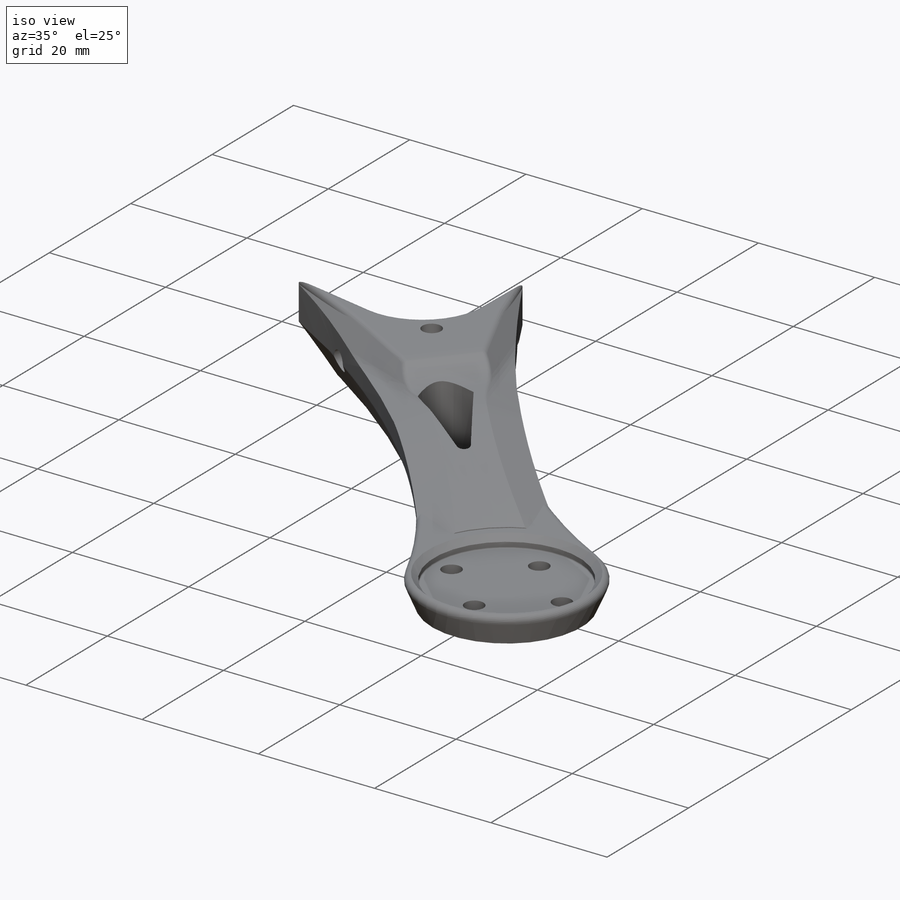
[diagram: iso view]
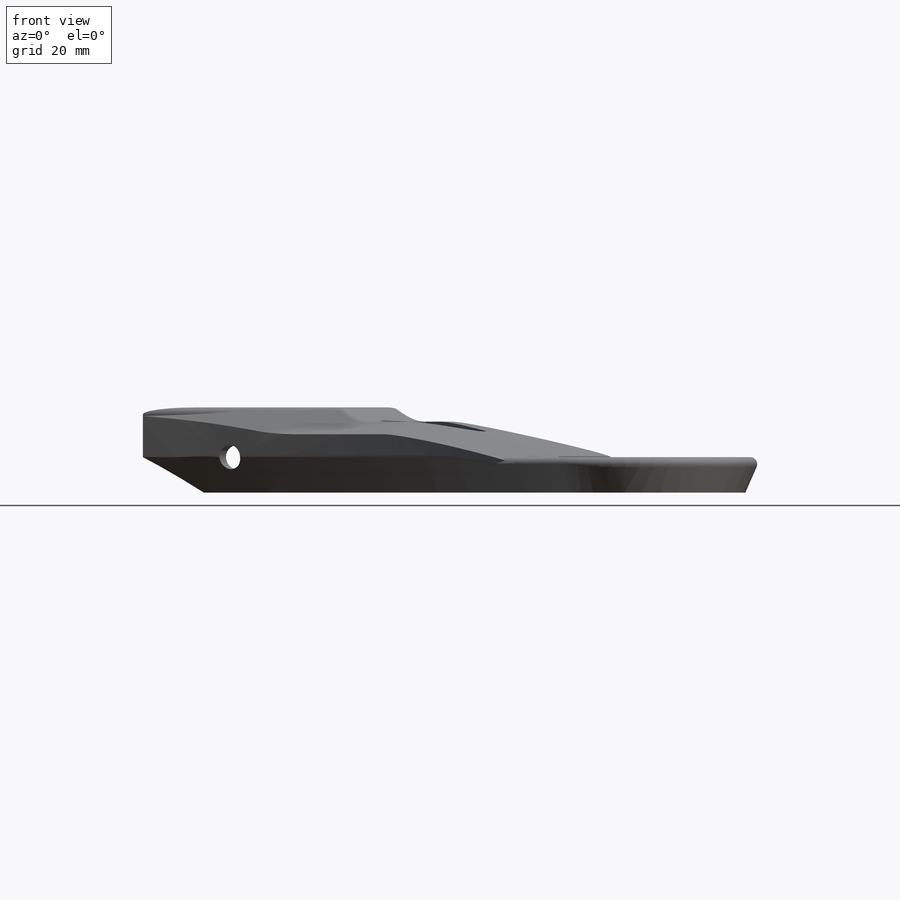
[diagram: front view]
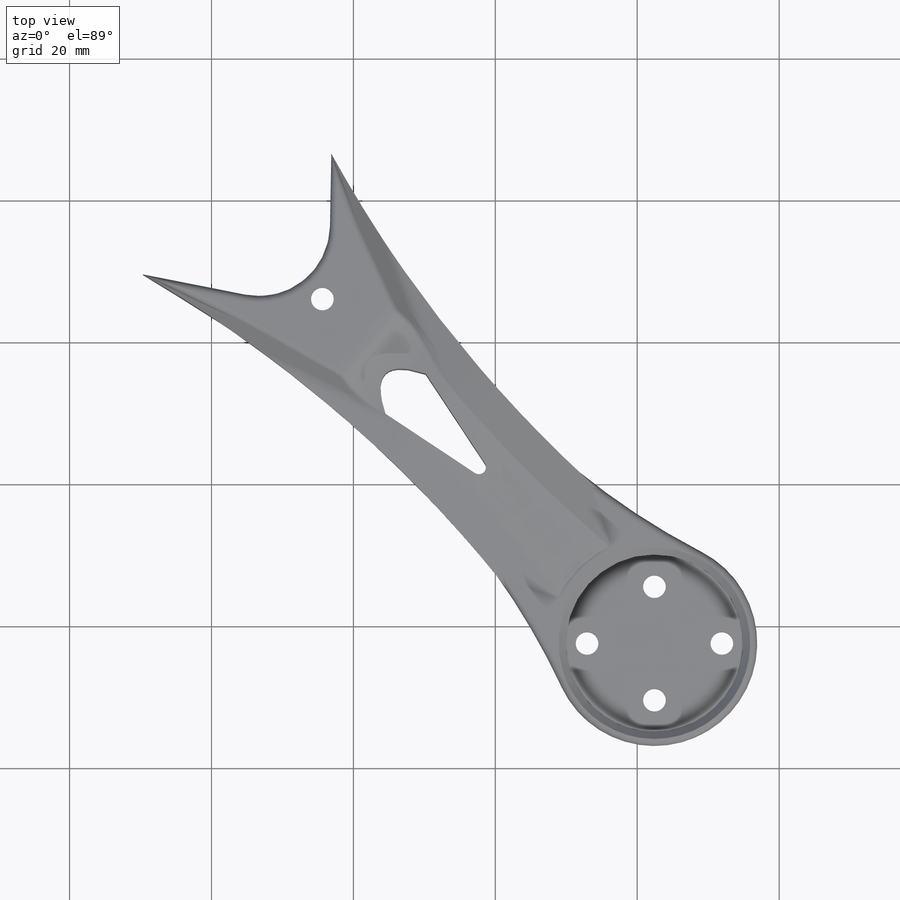
[diagram: top view]
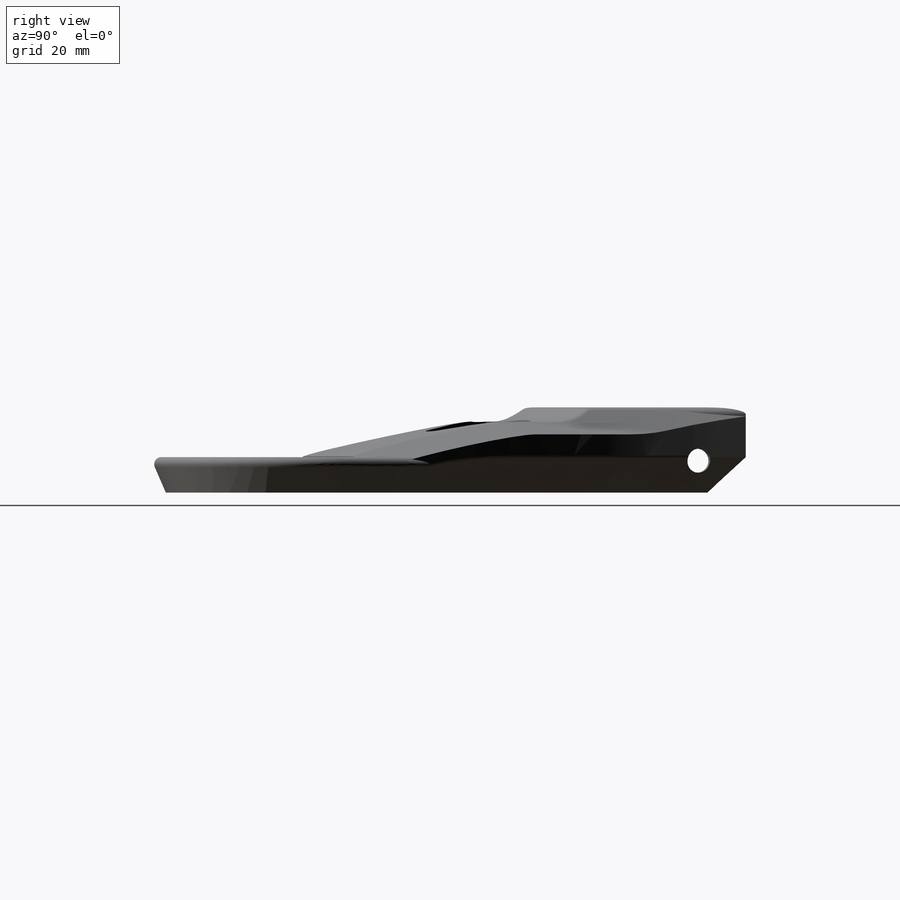
[diagram: right view]
SOLIDWORKS PART (.sldprt)
format: sldprt  version: not decoded by parser v0  size: 1,561,600 bytes
history: native  units: mm
features: sketch x33, cut_extrude x28, fillet x21, chamfer x12, extrude x5, material x1 (+13 scaffold rows collapsed)
feature tree (113):
  scaffold x13  (default folders/planes/origin — collapsed)
  material  "Material <not specified>"
  sketch  "Sketch1"  dims[D1=100.0mm D2=50.0mm]
  extrude  "Boss-Extrude1"  Depth=30mm
  sketch  "Sketch2"  dims[D1=85.0mm D2=35.0mm]
  cut_extrude  "Cut-Extrude1"  Depth=20mm
  sketch  "Sketch3"  dims[c1.D1=100.0mm c1.D2=25.0mm c1.D3=25.0mm c1.D4=25.0mm c1.D5=20.0mm c1.D6=20.0mm c1.D7=20.0mm c1.D8=20.0mm c2.D1=60.0mm c2.D2=60.0mm c2.D3=60.0mm c2.D4=60.0mm c2.D5=60.0mm c2.D6=3.0mm c2.D7=25.0mm c2.D8=3.0mm c2.D9=25.0mm c2.D10=3.0mm c2.D11=25.0mm c2.D12=3.0mm c2.D13=25.0mm c2.D14=7.5mm c2.D15=7.5mm]
  extrude  "Boss-Extrude4"  [1 undecoded]
  sketch  "Sketch5"  dims[c1.D5=200.0mm c1.D7=~80.750193mm c1.D1=20.0mm c1.D2=42.5mm c1.D3=20.0mm c1.D4=100.0mm c1.D6=100.0mm c2.D7=100.0mm c2.D8=100.0mm]
  cut_extrude  "Cut-Extrude3"  Depth=100mm
  sketch  "Sketch7"  dims[c1.D3=~13.07243mm c1.D5=200.0mm c1.D6=~58.091072mm c1.D1=40.0mm c1.D2=40.0mm c2.D3=100.0mm c2.D4=100.0mm c2.D6=100.0mm c2.D7=100.0mm]
  cut_extrude  "Cut-Extrude5"  Depth=100mm
  sketch  "Sketch8"
  cut_extrude  "Cut-Extrude6"  Depth=100mm
  sketch  "Sketch10"
  cut_extrude  "Cut-Extrude7"  [1 undecoded]
  fillet  "Fillet10"  Radius=100mm
  chamfer  "Chamfer1"  Distance=12.5mm
  chamfer  "Chamfer2"  Distance=12.5mm
  chamfer  "Chamfer3"  Distance=12.5mm
  chamfer  "Chamfer4"  Distance=12.5mm
  fillet  "Fillet11"  Radius=3mm
  fillet  "Fillet13"  Radius=5mm
  fillet  "Fillet14"  Radius=3mm
  chamfer  "Chamfer5"  Distance=3mm Angle=45deg
  sketch  "Sketch11"  dims[D1=15.0mm D2=7.5mm]
  cut_extrude  "Cut-Extrude8"  Depth=5mm
  fillet  "Fillet17"  Radius=10mm
  sketch  "Sketch12"  dims[D1=4.5mm 10=15.0mm]
  cut_extrude  "Cut-Extrude9"  Depth=7mm
  sketch  "Sketch13"  dims[D1=5.0mm D2=15.0mm]
  cut_extrude  "Cut-Extrude10"  Depth=7mm
  sketch  "Sketch14"  dims[D1=5.0mm D2=15.0mm]
  cut_extrude  "Cut-Extrude11"  Depth=7mm
  sketch  "Sketch15"  dims[D1=5.0mm D2=15.0mm]
  cut_extrude  "Cut-Extrude12"  Depth=7mm
  sketch  "Sketch16"  dims[D1=3.4mm D2=5.0mm 12.5=12.5mm]
  cut_extrude  "Cut-Extrude13"  Depth=10mm
  sketch  "Sketch17"  dims[D1=5.0mm D2=12.5mm]
  cut_extrude  "Cut-Extrude14"  Depth=10mm
  sketch  "Sketch18"  dims[D1=5.0mm D2=12.5mm]
  cut_extrude  "Cut-Extrude15"  Depth=10mm
  sketch  "Sketch19"  dims[D1=5.0mm D2=12.5mm]
  cut_extrude  "Cut-Extrude16"  Depth=10mm
  fillet  "Fillet18"  Radius=1mm
  sketch  "Sketch27"  dims[D1=15.0mm]
  cut_extrude  "Cut-Extrude19"  Depth=100mm
  sketch  "Sketch28"  dims[15=15.0mm]
  cut_extrude  "Cut-Extrude20"  Depth=5mm
  fillet  "Fillet28"  Radius=5mm
  sketch  "Sketch30"  dims[D1=4.0mm D2=4.0mm D3=4.0mm D4=4.0mm]
  extrude  "Boss-Extrude10"  [1 undecoded]
  sketch  "Sketch31"  dims[D1=5.0mm D2=0.0mm]
  cut_extrude  "Cut-Extrude22"  [1 undecoded]
  sketch  "Sketch32"
  cut_extrude  "Cut-Extrude23"  [1 undecoded]
  sketch  "Sketch33"
  cut_extrude  "Cut-Extrude24"  Depth=3mm
  fillet  "Fillet29"  Radius=3mm
  fillet  "Fillet30"  Radius=1.8mm
  sketch  "Sketch34"  dims[c1.D3=~66.606201mm c1.D6=30.0mm c1.D9=360.0mm c1.D10=200.0mm c1.D1=~31.552585mm c1.D2=60.0mm c2.D3=180.0mm c2.D4=180.0mm c2.D5=~42.426407mm c2.D7=180.0mm c2.D8=180.0mm]
  extrude  "Boss-Extrude11"  Depth=10mm
  sketch  "Sketch35"  dims[c1.D1=30.0mm c1.D2=25.0mm c1.D3=7.0mm c1.D4=7.0mm c1.D5=5.0mm c2.D1=25.0mm c2.D6=~16.935231mm c2.D2=25.0mm c3.D1=20.0mm c3.D2=20.0mm c3.D3=8.0mm c3.D4=4.0mm]
  cut_extrude  "Cut-Extrude25"  Depth=10mm
  fillet  "Fillet31"  Radius=1mm
  sketch  "Sketch39"
  cut_extrude  "Cut-Extrude27"  Depth=10mm
  sketch  "Sketch40"
  cut_extrude  "Cut-Extrude28"  Depth=10mm
  sketch  "Sketch41"
  cut_extrude  "Cut-Extrude29"  Depth=10mm
  sketch  "Sketch42"
  cut_extrude  "Cut-Extrude30"  Depth=5mm
  chamfer  "Chamfer6"  Distance=15mm Angle=18deg
  sketch  "Sketch43"  dims[D1=2.4mm]
  cut_extrude  "Cut-Extrude31"  Depth=2mm
  fillet  "Fillet32"  Radius=100mm
  fillet  "Fillet34"  Radius=100mm
  fillet  "Fillet35"  Radius=3mm
  chamfer  "Chamfer7"  Distance=5mm Angle=23deg
  chamfer  "Chamfer8"  Distance=5mm Angle=23deg
  sketch  "Sketch44"  dims[c1.D1=~1.617328mm c1.D5=~1.115375mm c1.D7=~2.216587mm c2.D1=8.0mm c2.D2=8.0mm c2.D3=9.5mm c2.D4=9.5mm c2.D5=9.5mm c2.D6=9.5mm c2.D7=8.0mm c2.D8=8.0mm c2.D9=0.0mm]
  chamfer  "Chamfer9"  Distance=1mm Angle=45deg
  fillet  "Fillet36"  Radius=1mm
  sketch  "Sketch45"
  extrude  "Boss-Extrude12"  Depth=2mm
  fillet  "Fillet37"  Radius=10mm
  chamfer  "Chamfer10"  Distance=3mm Angle=32deg
  chamfer  "Chamfer11"  Distance=3mm Angle=32deg
  fillet  "Fillet45"  Radius=10mm
  fillet  "Fillet38"  Radius=1mm
  fillet  "Fillet39"  Radius=3mm
  sketch  "Sketch46"  dims[c1.D1=6.5mm c1.D2=8.5mm c2.D1=2.65mm c2.D2=2.65mm]
  cut_extrude  "Cut-Extrude34"  Depth=5mm
  sketch  "Sketch47"
  cut_extrude  "Cut-Extrude35"  Depth=2mm
  cut_extrude  "Cut-Extrude36"  Depth=10mm
  fillet  "Fillet41"  Radius=0.2mm
  fillet  "Fillet46"  Radius=12mm
  fillet  "Fillet47"  Radius=1mm
  chamfer  "Chamfer15"  Distance=0.75mm Angle=45deg
decode coverage: 84 of 99 modeling features carry decoded parameters
note: ~ marks probable driven/reference dimensions
note: 5 parameter values undecoded
summary: no parameter record found for 5 features
note: suppression state not decoded; provenance and decode notes live in map.json
